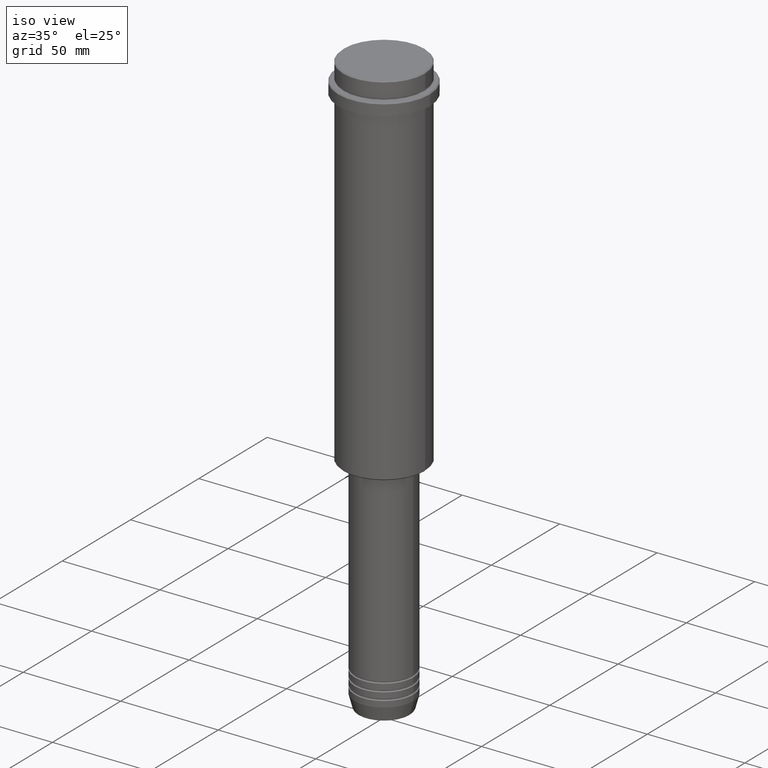
[diagram: clean part render]
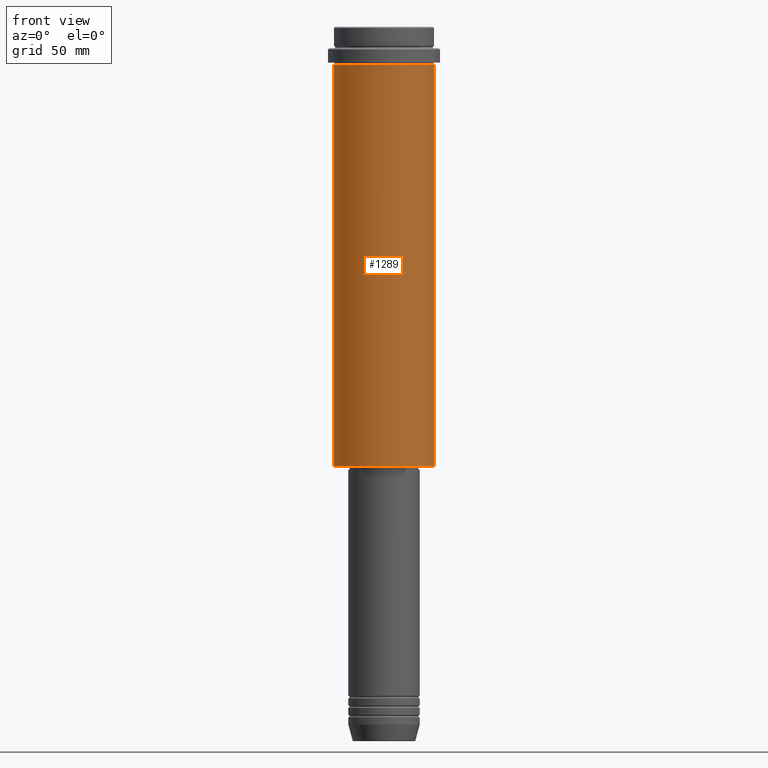
[diagram: tour spotlight — one face highlighted and labeled with its STEP entity id]
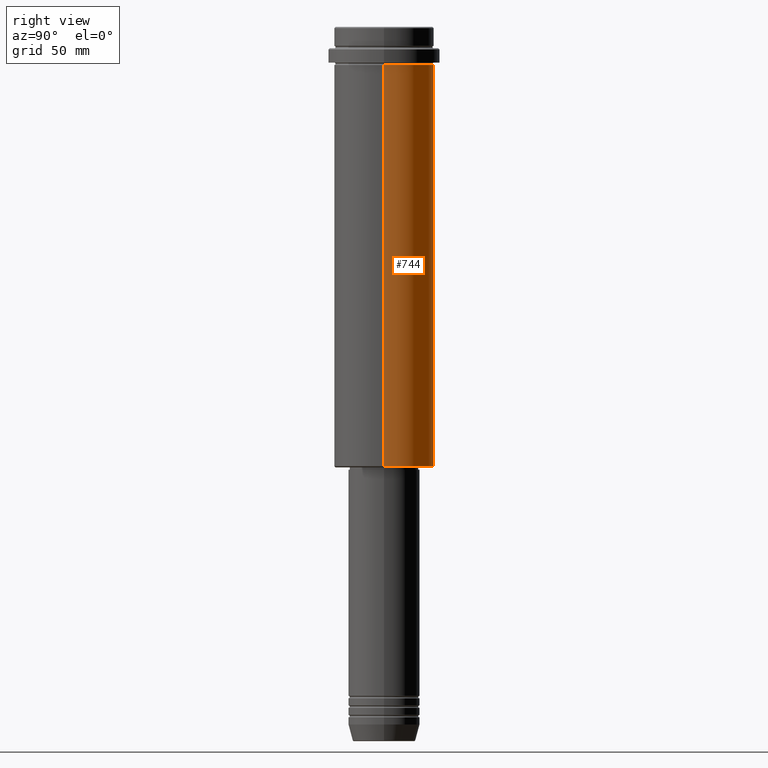
[diagram: tour spotlight — one face highlighted and labeled with its STEP entity id]
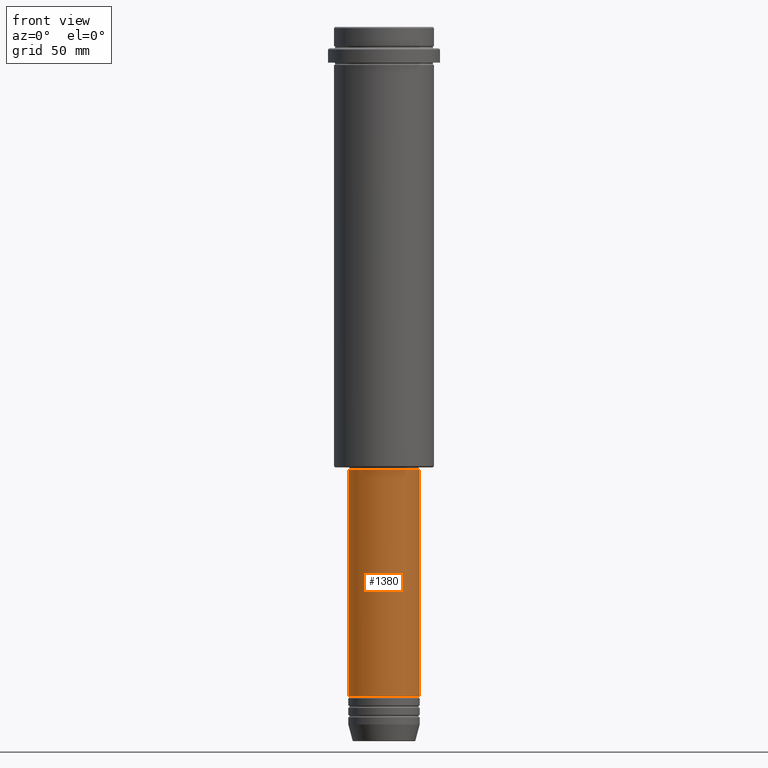
[diagram: tour spotlight — one face highlighted and labeled with its STEP entity id]
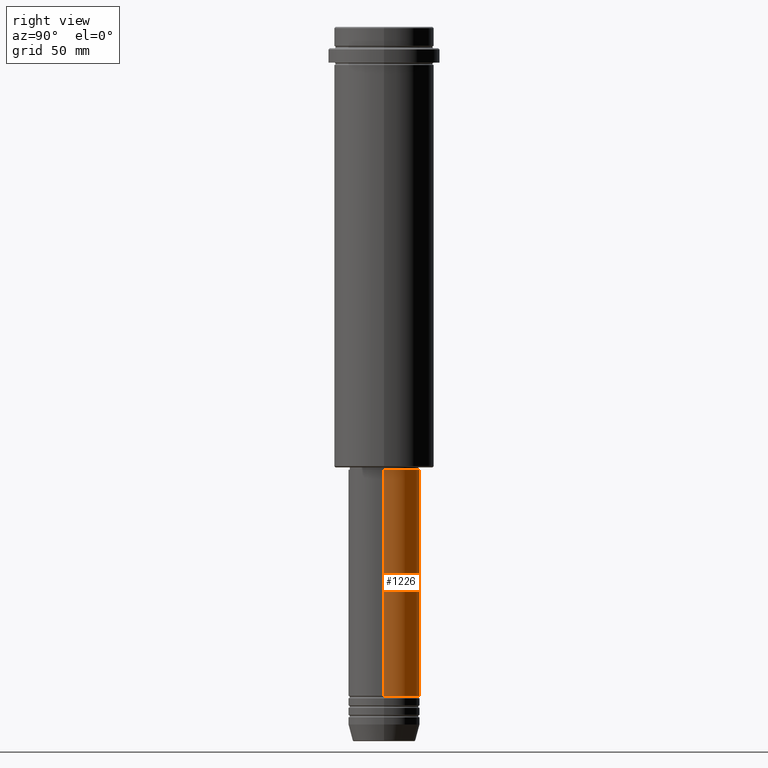
[diagram: tour spotlight — one face highlighted and labeled with its STEP entity id]
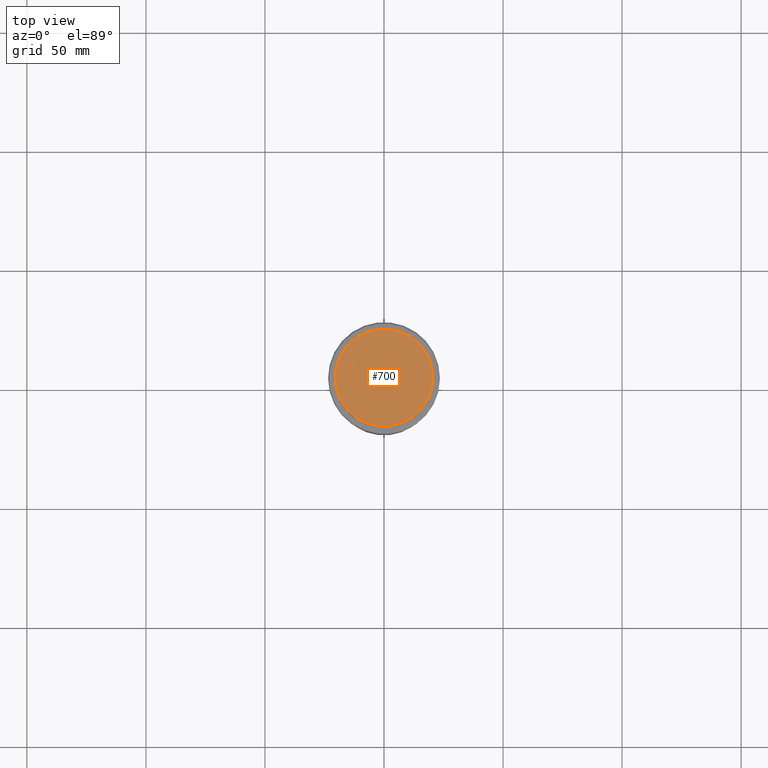
[diagram: tour spotlight — one face highlighted and labeled with its STEP entity id]
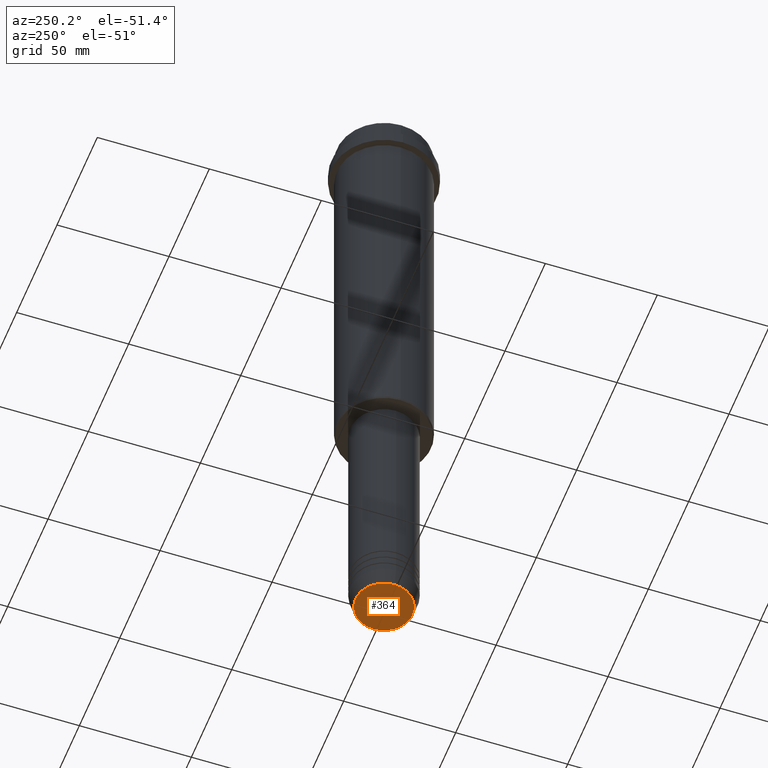
[diagram: tour spotlight — one face highlighted and labeled with its STEP entity id]
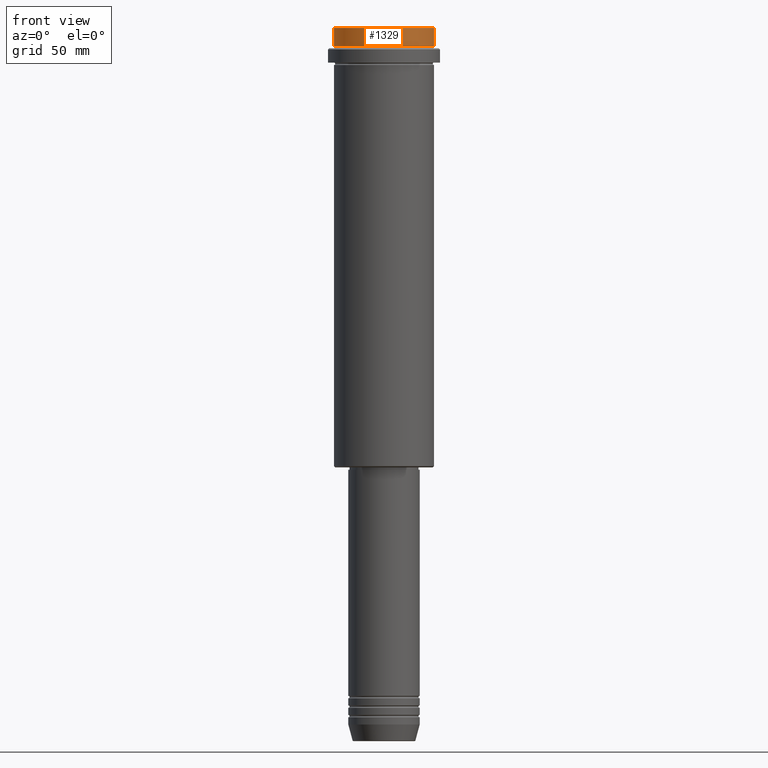
[diagram: tour spotlight — one face highlighted and labeled with its STEP entity id]
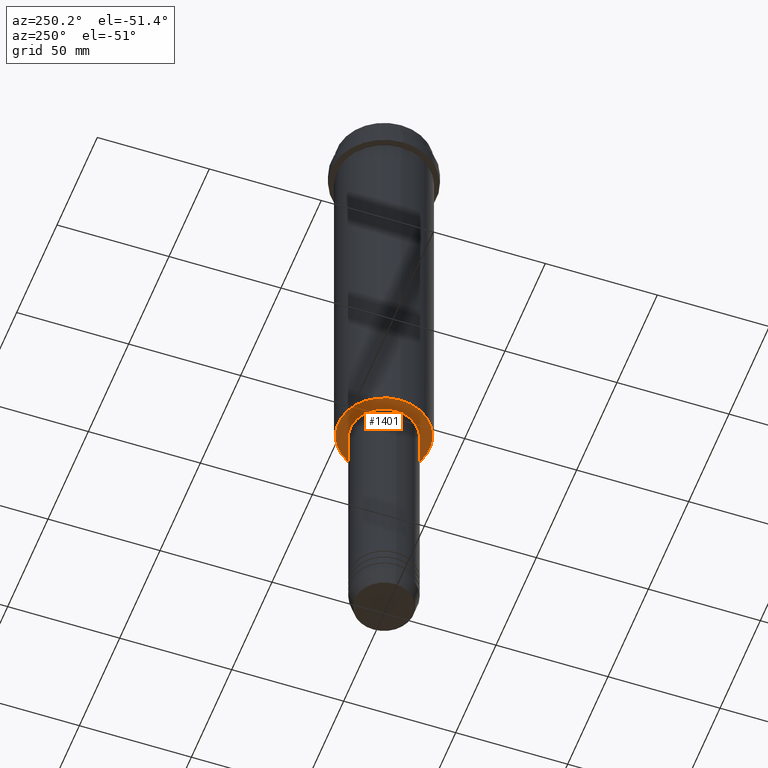
[diagram: tour spotlight — one face highlighted and labeled with its STEP entity id]
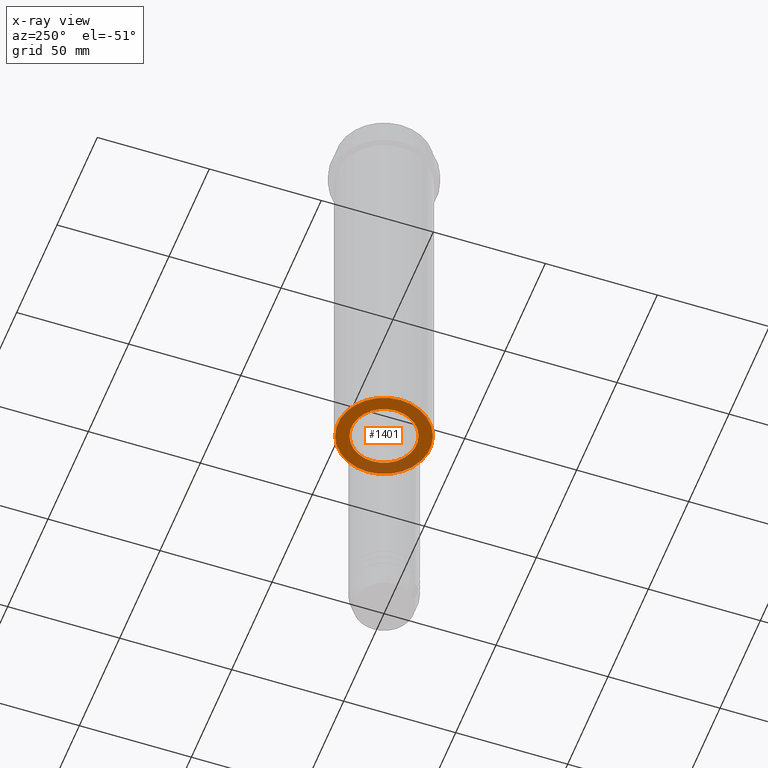
[diagram: x-ray of the same camera — body ghosted, this tour face saturated]
A machine part: a face-by-face anatomy tour. The part has 52 B-rep faces; the first image is the clean iso view, then the 8 largest visible faces are spotlighted one at a time (largest first), each with its STEP entity span.

Face 1 — front view, entity #1289. In plain terms, the highlighted cylindrical surface (partial cylindrical patch) has radius 21 mm, axis along (-0, -0, 1).
Definition (entity closure, byte-faithful):
#144 = CARTESIAN_POINT ( 'NONE',  ( 20.99999999999999645, 0.000000000000000000, -16.00000000000000355 ) ) ;
#175 = ORIENTED_EDGE ( 'NONE', *, *, #866, .F. ) ;
#181 = CARTESIAN_POINT ( 'NONE',  ( 20.99999999999999645, 0.000000000000000000, -184.4999999999999432 ) ) ;
#203 = DIRECTION ( 'NONE',  ( 1.000000000000000000, 0.000000000000000000, 0.000000000000000000 ) ) ;
#230 = DIRECTION ( 'NONE',  ( -0.000000000000000000, -0.000000000000000000, 1.000000000000000000 ) ) ;
#237 = VECTOR ( 'NONE', #411, 1000.000000000000000 ) ;
#250 = ORIENTED_EDGE ( 'NONE', *, *, #1252, .T. ) ;
#293 = VERTEX_POINT ( 'NONE', #791 ) ;
#299 = ORIENTED_EDGE ( 'NONE', *, *, #471, .F. ) ;
#397 = AXIS2_PLACEMENT_3D ( 'NONE', #466, #230, #203 ) ;
#411 = DIRECTION ( 'NONE',  ( -0.000000000000000000, -0.000000000000000000, 1.000000000000000000 ) ) ;
#458 = LINE ( 'NONE', #770, #1145 ) ;
#466 = CARTESIAN_POINT ( 'NONE',  ( 0.000000000000000000, 0.000000000000000000, -16.00000000000000355 ) ) ;
#471 = EDGE_CURVE ( 'NONE', #293, #517, #856, .T. ) ;
#495 = ORIENTED_EDGE ( 'NONE', *, *, #1081, .T. ) ;
#500 = DIRECTION ( 'NONE',  ( -0.000000000000000000, -0.000000000000000000, 1.000000000000000000 ) ) ;
#517 = VERTEX_POINT ( 'NONE', #144 ) ;
#630 = DIRECTION ( 'NONE',  ( 1.000000000000000000, 0.000000000000000000, 0.000000000000000000 ) ) ;
#642 = LINE ( 'NONE', #851, #237 ) ;
#741 = CYLINDRICAL_SURFACE ( 'NONE', #917, 20.99999999999999645 ) ;
#770 = CARTESIAN_POINT ( 'NONE',  ( 20.99999999999999645, 0.000000000000000000, 0.000000000000000000 ) ) ;
#786 = CIRCLE ( 'NONE', #1353, 20.99999999999999645 ) ;
#789 = CARTESIAN_POINT ( 'NONE',  ( -20.99999999999999645, 2.571758278209441267E-15, -184.4999999999999432 ) ) ;
#791 = CARTESIAN_POINT ( 'NONE',  ( -20.99999999999999645, 2.571758278209441267E-15, -16.00000000000000355 ) ) ;
#793 = DIRECTION ( 'NONE',  ( -0.000000000000000000, -0.000000000000000000, 1.000000000000000000 ) ) ;
#851 = CARTESIAN_POINT ( 'NONE',  ( -20.99999999999999645, 2.571758278209441267E-15, 0.000000000000000000 ) ) ;
#856 = CIRCLE ( 'NONE', #397, 20.99999999999999645 ) ;
#866 = EDGE_CURVE ( 'NONE', #1118, #293, #642, .T. ) ;
#880 = EDGE_LOOP ( 'NONE', ( #175, #250, #495, #299 ) ) ;
#917 = AXIS2_PLACEMENT_3D ( 'NONE', #1175, #924, #630 ) ;
#924 = DIRECTION ( 'NONE',  ( -0.000000000000000000, -0.000000000000000000, 1.000000000000000000 ) ) ;
#937 = FACE_OUTER_BOUND ( 'NONE', #880, .T. ) ;
#1081 = EDGE_CURVE ( 'NONE', #1337, #517, #458, .T. ) ;
#1118 = VERTEX_POINT ( 'NONE', #789 ) ;
#1145 = VECTOR ( 'NONE', #793, 1000.000000000000000 ) ;
#1175 = CARTESIAN_POINT ( 'NONE',  ( 0.000000000000000000, 0.000000000000000000, 0.000000000000000000 ) ) ;
#1252 = EDGE_CURVE ( 'NONE', #1118, #1337, #786, .T. ) ;
#1282 = DIRECTION ( 'NONE',  ( -1.000000000000000000, 0.000000000000000000, 0.000000000000000000 ) ) ;
#1289 = ADVANCED_FACE ( 'NONE', ( #937 ), #741, .T. ) ;
#1337 = VERTEX_POINT ( 'NONE', #181 ) ;
#1353 = AXIS2_PLACEMENT_3D ( 'NONE', #1387, #500, #1282 ) ;
#1387 = CARTESIAN_POINT ( 'NONE',  ( 0.000000000000000000, 0.000000000000000000, -184.4999999999999432 ) ) ;

Face 2 — right view, entity #744. In plain terms, the highlighted cylindrical surface (partial cylindrical patch) has radius 21 mm, axis along (-0, -0, 1).
Definition (entity closure, byte-faithful):
#48 = ORIENTED_EDGE ( 'NONE', *, *, #1253, .T. ) ;
#144 = CARTESIAN_POINT ( 'NONE',  ( 20.99999999999999645, 0.000000000000000000, -16.00000000000000355 ) ) ;
#181 = CARTESIAN_POINT ( 'NONE',  ( 20.99999999999999645, 0.000000000000000000, -184.4999999999999432 ) ) ;
#237 = VECTOR ( 'NONE', #411, 1000.000000000000000 ) ;
#274 = DIRECTION ( 'NONE',  ( -0.000000000000000000, -0.000000000000000000, 1.000000000000000000 ) ) ;
#293 = VERTEX_POINT ( 'NONE', #791 ) ;
#322 = CARTESIAN_POINT ( 'NONE',  ( 0.000000000000000000, 0.000000000000000000, -16.00000000000000355 ) ) ;
#330 = CIRCLE ( 'NONE', #1216, 20.99999999999999645 ) ;
#371 = EDGE_LOOP ( 'NONE', ( #48, #717, #415, #936 ) ) ;
#375 = CIRCLE ( 'NONE', #1008, 20.99999999999999645 ) ;
#388 = CARTESIAN_POINT ( 'NONE',  ( 0.000000000000000000, 0.000000000000000000, 0.000000000000000000 ) ) ;
#391 = CARTESIAN_POINT ( 'NONE',  ( 0.000000000000000000, 0.000000000000000000, -184.4999999999999432 ) ) ;
#411 = DIRECTION ( 'NONE',  ( -0.000000000000000000, -0.000000000000000000, 1.000000000000000000 ) ) ;
#415 = ORIENTED_EDGE ( 'NONE', *, *, #1373, .F. ) ;
#429 = DIRECTION ( 'NONE',  ( -0.000000000000000000, -0.000000000000000000, 1.000000000000000000 ) ) ;
#458 = LINE ( 'NONE', #770, #1145 ) ;
#517 = VERTEX_POINT ( 'NONE', #144 ) ;
#616 = FACE_OUTER_BOUND ( 'NONE', #371, .T. ) ;
#642 = LINE ( 'NONE', #851, #237 ) ;
#706 = DIRECTION ( 'NONE',  ( 1.000000000000000000, 0.000000000000000000, 0.000000000000000000 ) ) ;
#717 = ORIENTED_EDGE ( 'NONE', *, *, #866, .T. ) ;
#744 = ADVANCED_FACE ( 'NONE', ( #616 ), #1344, .T. ) ;
#770 = CARTESIAN_POINT ( 'NONE',  ( 20.99999999999999645, 0.000000000000000000, 0.000000000000000000 ) ) ;
#789 = CARTESIAN_POINT ( 'NONE',  ( -20.99999999999999645, 2.571758278209441267E-15, -184.4999999999999432 ) ) ;
#791 = CARTESIAN_POINT ( 'NONE',  ( -20.99999999999999645, 2.571758278209441267E-15, -16.00000000000000355 ) ) ;
#793 = DIRECTION ( 'NONE',  ( -0.000000000000000000, -0.000000000000000000, 1.000000000000000000 ) ) ;
#838 = DIRECTION ( 'NONE',  ( -1.000000000000000000, 0.000000000000000000, 0.000000000000000000 ) ) ;
#848 = DIRECTION ( 'NONE',  ( -0.000000000000000000, -0.000000000000000000, 1.000000000000000000 ) ) ;
#851 = CARTESIAN_POINT ( 'NONE',  ( -20.99999999999999645, 2.571758278209441267E-15, 0.000000000000000000 ) ) ;
#866 = EDGE_CURVE ( 'NONE', #1118, #293, #642, .T. ) ;
#936 = ORIENTED_EDGE ( 'NONE', *, *, #1081, .F. ) ;
#1008 = AXIS2_PLACEMENT_3D ( 'NONE', #322, #429, #1182 ) ;
#1030 = AXIS2_PLACEMENT_3D ( 'NONE', #388, #274, #706 ) ;
#1081 = EDGE_CURVE ( 'NONE', #1337, #517, #458, .T. ) ;
#1118 = VERTEX_POINT ( 'NONE', #789 ) ;
#1145 = VECTOR ( 'NONE', #793, 1000.000000000000000 ) ;
#1182 = DIRECTION ( 'NONE',  ( 1.000000000000000000, 0.000000000000000000, 0.000000000000000000 ) ) ;
#1216 = AXIS2_PLACEMENT_3D ( 'NONE', #391, #848, #838 ) ;
#1253 = EDGE_CURVE ( 'NONE', #1337, #1118, #330, .T. ) ;
#1337 = VERTEX_POINT ( 'NONE', #181 ) ;
#1344 = CYLINDRICAL_SURFACE ( 'NONE', #1030, 20.99999999999999645 ) ;
#1373 = EDGE_CURVE ( 'NONE', #517, #293, #375, .T. ) ;

Face 3 — front view, entity #1380. In plain terms, the highlighted cylindrical surface (edge-blend (fillet) strip) has radius 15 mm, axis along (-0, -0, 1).
Definition (entity closure, byte-faithful):
#3 = DIRECTION ( 'NONE',  ( 1.000000000000000000, 0.000000000000000000, 0.000000000000000000 ) ) ;
#15 = CARTESIAN_POINT ( 'NONE',  ( 0.000000000000000000, 0.000000000000000000, 0.000000000000000000 ) ) ;
#94 = EDGE_CURVE ( 'NONE', #1141, #723, #867, .T. ) ;
#119 = CYLINDRICAL_SURFACE ( 'NONE', #604, 15.00000000000000000 ) ;
#180 = ORIENTED_EDGE ( 'NONE', *, *, #94, .F. ) ;
#207 = CARTESIAN_POINT ( 'NONE',  ( 0.000000000000000000, 0.000000000000000000, -185.9999999999999147 ) ) ;
#258 = ORIENTED_EDGE ( 'NONE', *, *, #677, .T. ) ;
#288 = ORIENTED_EDGE ( 'NONE', *, *, #529, .T. ) ;
#341 = DIRECTION ( 'NONE',  ( -0.000000000000000000, -0.000000000000000000, 1.000000000000000000 ) ) ;
#436 = AXIS2_PLACEMENT_3D ( 'NONE', #207, #840, #632 ) ;
#444 = VECTOR ( 'NONE', #934, 1000.000000000000000 ) ;
#529 = EDGE_CURVE ( 'NONE', #1141, #593, #1103, .T. ) ;
#532 = CARTESIAN_POINT ( 'NONE',  ( -15.00000000000000000, 1.836970198721029589E-15, 0.000000000000000000 ) ) ;
#561 = DIRECTION ( 'NONE',  ( -0.000000000000000000, -0.000000000000000000, 1.000000000000000000 ) ) ;
#579 = CARTESIAN_POINT ( 'NONE',  ( -15.00000000000000000, 1.836970198721029589E-15, -280.9999999999998863 ) ) ;
#593 = VERTEX_POINT ( 'NONE', #680 ) ;
#594 = LINE ( 'NONE', #610, #444 ) ;
#604 = AXIS2_PLACEMENT_3D ( 'NONE', #15, #768, #3 ) ;
#610 = CARTESIAN_POINT ( 'NONE',  ( 15.00000000000000000, 0.000000000000000000, 0.000000000000000000 ) ) ;
#632 = DIRECTION ( 'NONE',  ( 1.000000000000000000, 0.000000000000000000, 0.000000000000000000 ) ) ;
#677 = EDGE_CURVE ( 'NONE', #593, #889, #594, .T. ) ;
#680 = CARTESIAN_POINT ( 'NONE',  ( 15.00000000000000000, 0.000000000000000000, -280.9999999999998863 ) ) ;
#723 = VERTEX_POINT ( 'NONE', #1372 ) ;
#745 = DIRECTION ( 'NONE',  ( 1.000000000000000000, 0.000000000000000000, 0.000000000000000000 ) ) ;
#768 = DIRECTION ( 'NONE',  ( -0.000000000000000000, -0.000000000000000000, 1.000000000000000000 ) ) ;
#805 = VECTOR ( 'NONE', #341, 1000.000000000000000 ) ;
#840 = DIRECTION ( 'NONE',  ( -0.000000000000000000, -0.000000000000000000, 1.000000000000000000 ) ) ;
#849 = EDGE_CURVE ( 'NONE', #723, #889, #1053, .T. ) ;
#867 = LINE ( 'NONE', #532, #805 ) ;
#889 = VERTEX_POINT ( 'NONE', #1384 ) ;
#934 = DIRECTION ( 'NONE',  ( -0.000000000000000000, -0.000000000000000000, 1.000000000000000000 ) ) ;
#1002 = ORIENTED_EDGE ( 'NONE', *, *, #849, .F. ) ;
#1013 = EDGE_LOOP ( 'NONE', ( #180, #288, #258, #1002 ) ) ;
#1053 = CIRCLE ( 'NONE', #436, 15.00000000000000000 ) ;
#1103 = CIRCLE ( 'NONE', #1127, 15.00000000000000000 ) ;
#1127 = AXIS2_PLACEMENT_3D ( 'NONE', #1317, #561, #745 ) ;
#1141 = VERTEX_POINT ( 'NONE', #579 ) ;
#1317 = CARTESIAN_POINT ( 'NONE',  ( 0.000000000000000000, 0.000000000000000000, -280.9999999999998863 ) ) ;
#1319 = FACE_OUTER_BOUND ( 'NONE', #1013, .T. ) ;
#1372 = CARTESIAN_POINT ( 'NONE',  ( -15.00000000000000000, 1.836970198721029589E-15, -185.9999999999999147 ) ) ;
#1380 = ADVANCED_FACE ( 'NONE', ( #1319 ), #119, .T. ) ;
#1384 = CARTESIAN_POINT ( 'NONE',  ( 15.00000000000000000, 0.000000000000000000, -185.9999999999999147 ) ) ;

Face 4 — right view, entity #1226. In plain terms, the highlighted cylindrical surface (edge-blend (fillet) strip) has radius 15 mm, axis along (-0, -0, 1).
Definition (entity closure, byte-faithful):
#94 = EDGE_CURVE ( 'NONE', #1141, #723, #867, .T. ) ;
#111 = EDGE_CURVE ( 'NONE', #889, #723, #1147, .T. ) ;
#140 = CARTESIAN_POINT ( 'NONE',  ( 0.000000000000000000, 0.000000000000000000, -280.9999999999998863 ) ) ;
#172 = ORIENTED_EDGE ( 'NONE', *, *, #111, .F. ) ;
#200 = DIRECTION ( 'NONE',  ( 1.000000000000000000, 0.000000000000000000, 0.000000000000000000 ) ) ;
#241 = EDGE_CURVE ( 'NONE', #593, #1141, #787, .T. ) ;
#267 = DIRECTION ( 'NONE',  ( -0.000000000000000000, -0.000000000000000000, 1.000000000000000000 ) ) ;
#341 = DIRECTION ( 'NONE',  ( -0.000000000000000000, -0.000000000000000000, 1.000000000000000000 ) ) ;
#369 = CYLINDRICAL_SURFACE ( 'NONE', #1330, 15.00000000000000000 ) ;
#392 = ORIENTED_EDGE ( 'NONE', *, *, #677, .F. ) ;
#431 = CARTESIAN_POINT ( 'NONE',  ( 0.000000000000000000, 0.000000000000000000, -185.9999999999999147 ) ) ;
#444 = VECTOR ( 'NONE', #934, 1000.000000000000000 ) ;
#478 = FACE_OUTER_BOUND ( 'NONE', #641, .T. ) ;
#532 = CARTESIAN_POINT ( 'NONE',  ( -15.00000000000000000, 1.836970198721029589E-15, 0.000000000000000000 ) ) ;
#579 = CARTESIAN_POINT ( 'NONE',  ( -15.00000000000000000, 1.836970198721029589E-15, -280.9999999999998863 ) ) ;
#593 = VERTEX_POINT ( 'NONE', #680 ) ;
#594 = LINE ( 'NONE', #610, #444 ) ;
#610 = CARTESIAN_POINT ( 'NONE',  ( 15.00000000000000000, 0.000000000000000000, 0.000000000000000000 ) ) ;
#615 = ORIENTED_EDGE ( 'NONE', *, *, #94, .T. ) ;
#641 = EDGE_LOOP ( 'NONE', ( #697, #615, #172, #392 ) ) ;
#677 = EDGE_CURVE ( 'NONE', #593, #889, #594, .T. ) ;
#680 = CARTESIAN_POINT ( 'NONE',  ( 15.00000000000000000, 0.000000000000000000, -280.9999999999998863 ) ) ;
#697 = ORIENTED_EDGE ( 'NONE', *, *, #241, .T. ) ;
#723 = VERTEX_POINT ( 'NONE', #1372 ) ;
#781 = DIRECTION ( 'NONE',  ( -0.000000000000000000, -0.000000000000000000, 1.000000000000000000 ) ) ;
#787 = CIRCLE ( 'NONE', #1037, 15.00000000000000000 ) ;
#805 = VECTOR ( 'NONE', #341, 1000.000000000000000 ) ;
#806 = CARTESIAN_POINT ( 'NONE',  ( 0.000000000000000000, 0.000000000000000000, 0.000000000000000000 ) ) ;
#834 = AXIS2_PLACEMENT_3D ( 'NONE', #431, #781, #1102 ) ;
#867 = LINE ( 'NONE', #532, #805 ) ;
#889 = VERTEX_POINT ( 'NONE', #1384 ) ;
#934 = DIRECTION ( 'NONE',  ( -0.000000000000000000, -0.000000000000000000, 1.000000000000000000 ) ) ;
#1037 = AXIS2_PLACEMENT_3D ( 'NONE', #140, #1247, #1124 ) ;
#1102 = DIRECTION ( 'NONE',  ( 1.000000000000000000, 0.000000000000000000, 0.000000000000000000 ) ) ;
#1124 = DIRECTION ( 'NONE',  ( 1.000000000000000000, 0.000000000000000000, 0.000000000000000000 ) ) ;
#1141 = VERTEX_POINT ( 'NONE', #579 ) ;
#1147 = CIRCLE ( 'NONE', #834, 15.00000000000000000 ) ;
#1226 = ADVANCED_FACE ( 'NONE', ( #478 ), #369, .T. ) ;
#1247 = DIRECTION ( 'NONE',  ( -0.000000000000000000, -0.000000000000000000, 1.000000000000000000 ) ) ;
#1330 = AXIS2_PLACEMENT_3D ( 'NONE', #806, #267, #200 ) ;
#1372 = CARTESIAN_POINT ( 'NONE',  ( -15.00000000000000000, 1.836970198721029589E-15, -185.9999999999999147 ) ) ;
#1384 = CARTESIAN_POINT ( 'NONE',  ( 15.00000000000000000, 0.000000000000000000, -185.9999999999999147 ) ) ;

Face 5 — top view, entity #700. In plain terms, the highlighted planar face has unit normal (0, -0, 1).
Definition (entity closure, byte-faithful):
#36 = VERTEX_POINT ( 'NONE', #320 ) ;
#60 = DIRECTION ( 'NONE',  ( -0.000000000000000000, -0.000000000000000000, 1.000000000000000000 ) ) ;
#68 = FACE_OUTER_BOUND ( 'NONE', #79, .T. ) ;
#79 = EDGE_LOOP ( 'NONE', ( #216, #769 ) ) ;
#126 = AXIS2_PLACEMENT_3D ( 'NONE', #798, #60, #1326 ) ;
#216 = ORIENTED_EDGE ( 'NONE', *, *, #1178, .T. ) ;
#252 = CARTESIAN_POINT ( 'NONE',  ( 20.50000000000001776, 2.541142108230758663E-15, 0.000000000000000000 ) ) ;
#259 = DIRECTION ( 'NONE',  ( 0.000000000000000000, -0.000000000000000000, 1.000000000000000000 ) ) ;
#265 = DIRECTION ( 'NONE',  ( 1.000000000000000000, 0.000000000000000000, 0.000000000000000000 ) ) ;
#286 = AXIS2_PLACEMENT_3D ( 'NONE', #367, #801, #265 ) ;
#319 = EDGE_CURVE ( 'NONE', #527, #36, #442, .T. ) ;
#320 = CARTESIAN_POINT ( 'NONE',  ( -20.50000000000001776, 0.000000000000000000, 0.000000000000000000 ) ) ;
#367 = CARTESIAN_POINT ( 'NONE',  ( 0.000000000000000000, 0.000000000000000000, 0.000000000000000000 ) ) ;
#442 = CIRCLE ( 'NONE', #286, 20.50000000000001776 ) ;
#502 = CARTESIAN_POINT ( 'NONE',  ( 0.000000000000000000, 0.000000000000000000, 0.000000000000000000 ) ) ;
#527 = VERTEX_POINT ( 'NONE', #252 ) ;
#700 = ADVANCED_FACE ( 'NONE', ( #68 ), #1156, .T. ) ;
#769 = ORIENTED_EDGE ( 'NONE', *, *, #319, .T. ) ;
#798 = CARTESIAN_POINT ( 'NONE',  ( 0.000000000000000000, 0.000000000000000000, 0.000000000000000000 ) ) ;
#801 = DIRECTION ( 'NONE',  ( -0.000000000000000000, -0.000000000000000000, 1.000000000000000000 ) ) ;
#852 = AXIS2_PLACEMENT_3D ( 'NONE', #502, #259, #920 ) ;
#920 = DIRECTION ( 'NONE',  ( 1.000000000000000000, 0.000000000000000000, 0.000000000000000000 ) ) ;
#985 = CIRCLE ( 'NONE', #126, 20.50000000000001776 ) ;
#1156 = PLANE ( 'NONE',  #852 ) ;
#1178 = EDGE_CURVE ( 'NONE', #36, #527, #985, .T. ) ;
#1326 = DIRECTION ( 'NONE',  ( 1.000000000000000000, 0.000000000000000000, 0.000000000000000000 ) ) ;

Face 6 — auxiliary view, entity #364. In plain terms, the highlighted planar face has unit normal (0, -0, 1).
Definition (entity closure, byte-faithful):
#57 = AXIS2_PLACEMENT_3D ( 'NONE', #738, #1173, #197 ) ;
#132 = VERTEX_POINT ( 'NONE', #1297 ) ;
#147 = AXIS2_PLACEMENT_3D ( 'NONE', #1345, #1113, #795 ) ;
#179 = CARTESIAN_POINT ( 'NONE',  ( 0.000000000000000000, 0.000000000000000000, -300.0000000000000000 ) ) ;
#197 = DIRECTION ( 'NONE',  ( 1.000000000000000000, 0.000000000000000000, 0.000000000000000000 ) ) ;
#295 = FACE_OUTER_BOUND ( 'NONE', #1295, .T. ) ;
#301 = EDGE_CURVE ( 'NONE', #698, #132, #897, .T. ) ;
#364 = ADVANCED_FACE ( 'NONE', ( #295 ), #846, .F. ) ;
#381 = ORIENTED_EDGE ( 'NONE', *, *, #301, .T. ) ;
#468 = EDGE_CURVE ( 'NONE', #132, #698, #669, .T. ) ;
#669 = CIRCLE ( 'NONE', #57, 12.74069215899265828 ) ;
#698 = VERTEX_POINT ( 'NONE', #1361 ) ;
#738 = CARTESIAN_POINT ( 'NONE',  ( 0.000000000000000000, 0.000000000000000000, -300.0000000000000000 ) ) ;
#795 = DIRECTION ( 'NONE',  ( 1.000000000000000000, 0.000000000000000000, 0.000000000000000000 ) ) ;
#846 = PLANE ( 'NONE',  #1009 ) ;
#897 = CIRCLE ( 'NONE', #147, 12.74069215899265828 ) ;
#958 = DIRECTION ( 'NONE',  ( 0.000000000000000000, -0.000000000000000000, 1.000000000000000000 ) ) ;
#1009 = AXIS2_PLACEMENT_3D ( 'NONE', #179, #958, #1061 ) ;
#1061 = DIRECTION ( 'NONE',  ( 1.000000000000000000, 0.000000000000000000, 0.000000000000000000 ) ) ;
#1113 = DIRECTION ( 'NONE',  ( 0.000000000000000000, 0.000000000000000000, -1.000000000000000000 ) ) ;
#1173 = DIRECTION ( 'NONE',  ( 0.000000000000000000, 0.000000000000000000, -1.000000000000000000 ) ) ;
#1198 = ORIENTED_EDGE ( 'NONE', *, *, #468, .T. ) ;
#1295 = EDGE_LOOP ( 'NONE', ( #1198, #381 ) ) ;
#1297 = CARTESIAN_POINT ( 'NONE',  ( 12.74069215899265828, 0.000000000000000000, -300.0000000000000000 ) ) ;
#1345 = CARTESIAN_POINT ( 'NONE',  ( 0.000000000000000000, 0.000000000000000000, -300.0000000000000000 ) ) ;
#1361 = CARTESIAN_POINT ( 'NONE',  ( -12.74069215899265828, 1.589857736427680246E-15, -300.0000000000000000 ) ) ;

Face 7 — front view, entity #1329. In plain terms, the highlighted cylindrical surface (partial cylindrical patch) has radius 21 mm, axis along (-0, -0, 1).
Definition (entity closure, byte-faithful):
#44 = CARTESIAN_POINT ( 'NONE',  ( 0.000000000000000000, 0.000000000000000000, -7.999999999999998224 ) ) ;
#97 = DIRECTION ( 'NONE',  ( -0.000000000000000000, -0.000000000000000000, 1.000000000000000000 ) ) ;
#102 = ORIENTED_EDGE ( 'NONE', *, *, #656, .T. ) ;
#134 = LINE ( 'NONE', #1210, #915 ) ;
#148 = AXIS2_PLACEMENT_3D ( 'NONE', #44, #817, #911 ) ;
#161 = CARTESIAN_POINT ( 'NONE',  ( 20.99999999999999645, 0.000000000000000000, -7.999999999999998224 ) ) ;
#185 = ORIENTED_EDGE ( 'NONE', *, *, #526, .T. ) ;
#210 = VECTOR ( 'NONE', #97, 1000.000000000000000 ) ;
#251 = EDGE_LOOP ( 'NONE', ( #287, #102, #1130, #185 ) ) ;
#254 = VERTEX_POINT ( 'NONE', #161 ) ;
#287 = ORIENTED_EDGE ( 'NONE', *, *, #908, .F. ) ;
#302 = CIRCLE ( 'NONE', #148, 20.99999999999999645 ) ;
#309 = FACE_OUTER_BOUND ( 'NONE', #251, .T. ) ;
#324 = CARTESIAN_POINT ( 'NONE',  ( -20.99999999999999645, 2.571758278209441267E-15, 0.000000000000000000 ) ) ;
#521 = DIRECTION ( 'NONE',  ( -0.000000000000000000, -0.000000000000000000, 1.000000000000000000 ) ) ;
#526 = EDGE_CURVE ( 'NONE', #803, #747, #1355, .T. ) ;
#565 = DIRECTION ( 'NONE',  ( -0.000000000000000000, -0.000000000000000000, 1.000000000000000000 ) ) ;
#638 = LINE ( 'NONE', #324, #210 ) ;
#656 = EDGE_CURVE ( 'NONE', #919, #254, #302, .T. ) ;
#747 = VERTEX_POINT ( 'NONE', #927 ) ;
#802 = AXIS2_PLACEMENT_3D ( 'NONE', #1119, #1205, #1016 ) ;
#803 = VERTEX_POINT ( 'NONE', #1296 ) ;
#817 = DIRECTION ( 'NONE',  ( -0.000000000000000000, -0.000000000000000000, 1.000000000000000000 ) ) ;
#908 = EDGE_CURVE ( 'NONE', #919, #747, #638, .T. ) ;
#911 = DIRECTION ( 'NONE',  ( 1.000000000000000000, 0.000000000000000000, 0.000000000000000000 ) ) ;
#915 = VECTOR ( 'NONE', #565, 1000.000000000000000 ) ;
#919 = VERTEX_POINT ( 'NONE', #961 ) ;
#927 = CARTESIAN_POINT ( 'NONE',  ( -20.99999999999999645, 2.571758278209441267E-15, -0.4999999999999518718 ) ) ;
#961 = CARTESIAN_POINT ( 'NONE',  ( -20.99999999999999645, 2.571758278209441267E-15, -7.999999999999998224 ) ) ;
#972 = EDGE_CURVE ( 'NONE', #254, #803, #134, .T. ) ;
#1016 = DIRECTION ( 'NONE',  ( 1.000000000000000000, 0.000000000000000000, 0.000000000000000000 ) ) ;
#1043 = DIRECTION ( 'NONE',  ( 1.000000000000000000, 0.000000000000000000, 0.000000000000000000 ) ) ;
#1064 = CARTESIAN_POINT ( 'NONE',  ( 0.000000000000000000, 0.000000000000000000, 0.000000000000000000 ) ) ;
#1119 = CARTESIAN_POINT ( 'NONE',  ( 0.000000000000000000, 0.000000000000000000, -0.4999999999999518718 ) ) ;
#1130 = ORIENTED_EDGE ( 'NONE', *, *, #972, .T. ) ;
#1148 = CYLINDRICAL_SURFACE ( 'NONE', #1405, 20.99999999999999645 ) ;
#1205 = DIRECTION ( 'NONE',  ( 0.000000000000000000, 0.000000000000000000, -1.000000000000000000 ) ) ;
#1210 = CARTESIAN_POINT ( 'NONE',  ( 20.99999999999999645, 0.000000000000000000, 0.000000000000000000 ) ) ;
#1296 = CARTESIAN_POINT ( 'NONE',  ( 20.99999999999999645, 0.000000000000000000, -0.4999999999999518718 ) ) ;
#1329 = ADVANCED_FACE ( 'NONE', ( #309 ), #1148, .T. ) ;
#1355 = CIRCLE ( 'NONE', #802, 20.99999999999999645 ) ;
#1405 = AXIS2_PLACEMENT_3D ( 'NONE', #1064, #521, #1043 ) ;

Face 8 — auxiliary view, entity #1401. An x-ray twin of the same camera follows (body ghosted, this face saturated) — the face is partly hidden behind the body. In plain terms, the highlighted planar face has unit normal (0, 0, -1).
Definition (entity closure, byte-faithful):
#84 = EDGE_LOOP ( 'NONE', ( #629, #844 ) ) ;
#87 = DIRECTION ( 'NONE',  ( 0.000000000000000000, 0.000000000000000000, -1.000000000000000000 ) ) ;
#110 = EDGE_CURVE ( 'NONE', #224, #1225, #986, .T. ) ;
#173 = DIRECTION ( 'NONE',  ( -0.000000000000000000, -0.000000000000000000, 1.000000000000000000 ) ) ;
#189 = CARTESIAN_POINT ( 'NONE',  ( 0.000000000000000000, 0.000000000000000000, -184.9999999999999716 ) ) ;
#191 = AXIS2_PLACEMENT_3D ( 'NONE', #1154, #173, #402 ) ;
#205 = DIRECTION ( 'NONE',  ( -1.000000000000000000, 0.000000000000000000, -0.000000000000000000 ) ) ;
#213 = FACE_BOUND ( 'NONE', #84, .T. ) ;
#224 = VERTEX_POINT ( 'NONE', #243 ) ;
#243 = CARTESIAN_POINT ( 'NONE',  ( 20.49999999999996447, 0.000000000000000000, -185.0000000000000000 ) ) ;
#303 = DIRECTION ( 'NONE',  ( 1.000000000000000000, 0.000000000000000000, 0.000000000000000000 ) ) ;
#307 = CIRCLE ( 'NONE', #191, 14.49999999999999822 ) ;
#314 = CARTESIAN_POINT ( 'NONE',  ( 14.49999999999999822, 0.000000000000000000, -184.9999999999999716 ) ) ;
#321 = EDGE_CURVE ( 'NONE', #1225, #224, #626, .T. ) ;
#337 = FACE_OUTER_BOUND ( 'NONE', #1320, .T. ) ;
#356 = ORIENTED_EDGE ( 'NONE', *, *, #110, .T. ) ;
#376 = AXIS2_PLACEMENT_3D ( 'NONE', #189, #1279, #303 ) ;
#402 = DIRECTION ( 'NONE',  ( 1.000000000000000000, 0.000000000000000000, 0.000000000000000000 ) ) ;
#440 = PLANE ( 'NONE',  #758 ) ;
#451 = EDGE_CURVE ( 'NONE', #1105, #525, #988, .T. ) ;
#487 = ORIENTED_EDGE ( 'NONE', *, *, #321, .T. ) ;
#525 = VERTEX_POINT ( 'NONE', #314 ) ;
#626 = CIRCLE ( 'NONE', #1332, 20.49999999999996447 ) ;
#629 = ORIENTED_EDGE ( 'NONE', *, *, #1335, .T. ) ;
#714 = AXIS2_PLACEMENT_3D ( 'NONE', #974, #1408, #1413 ) ;
#752 = CARTESIAN_POINT ( 'NONE',  ( 0.000000000000000000, 21.00000000000000000, -185.0000000000000000 ) ) ;
#758 = AXIS2_PLACEMENT_3D ( 'NONE', #752, #862, #205 ) ;
#815 = CARTESIAN_POINT ( 'NONE',  ( -14.49999999999999822, 1.775737858763662015E-15, -184.9999999999999716 ) ) ;
#844 = ORIENTED_EDGE ( 'NONE', *, *, #451, .T. ) ;
#862 = DIRECTION ( 'NONE',  ( 0.000000000000000000, 0.000000000000000000, -1.000000000000000000 ) ) ;
#951 = DIRECTION ( 'NONE',  ( -1.000000000000000000, 0.000000000000000000, 0.000000000000000000 ) ) ;
#974 = CARTESIAN_POINT ( 'NONE',  ( 0.000000000000000000, 0.000000000000000000, -185.0000000000000000 ) ) ;
#986 = CIRCLE ( 'NONE', #714, 20.49999999999996447 ) ;
#988 = CIRCLE ( 'NONE', #376, 14.49999999999999822 ) ;
#1105 = VERTEX_POINT ( 'NONE', #815 ) ;
#1111 = CARTESIAN_POINT ( 'NONE',  ( -20.49999999999996447, 2.541142108230755507E-15, -185.0000000000000000 ) ) ;
#1132 = CARTESIAN_POINT ( 'NONE',  ( 0.000000000000000000, 0.000000000000000000, -185.0000000000000000 ) ) ;
#1154 = CARTESIAN_POINT ( 'NONE',  ( 0.000000000000000000, 0.000000000000000000, -184.9999999999999716 ) ) ;
#1225 = VERTEX_POINT ( 'NONE', #1111 ) ;
#1279 = DIRECTION ( 'NONE',  ( -0.000000000000000000, -0.000000000000000000, 1.000000000000000000 ) ) ;
#1320 = EDGE_LOOP ( 'NONE', ( #356, #487 ) ) ;
#1332 = AXIS2_PLACEMENT_3D ( 'NONE', #1132, #87, #951 ) ;
#1335 = EDGE_CURVE ( 'NONE', #525, #1105, #307, .T. ) ;
#1401 = ADVANCED_FACE ( 'NONE', ( #337, #213 ), #440, .T. ) ;
#1408 = DIRECTION ( 'NONE',  ( 0.000000000000000000, 0.000000000000000000, -1.000000000000000000 ) ) ;
#1413 = DIRECTION ( 'NONE',  ( -1.000000000000000000, 0.000000000000000000, 0.000000000000000000 ) ) ;